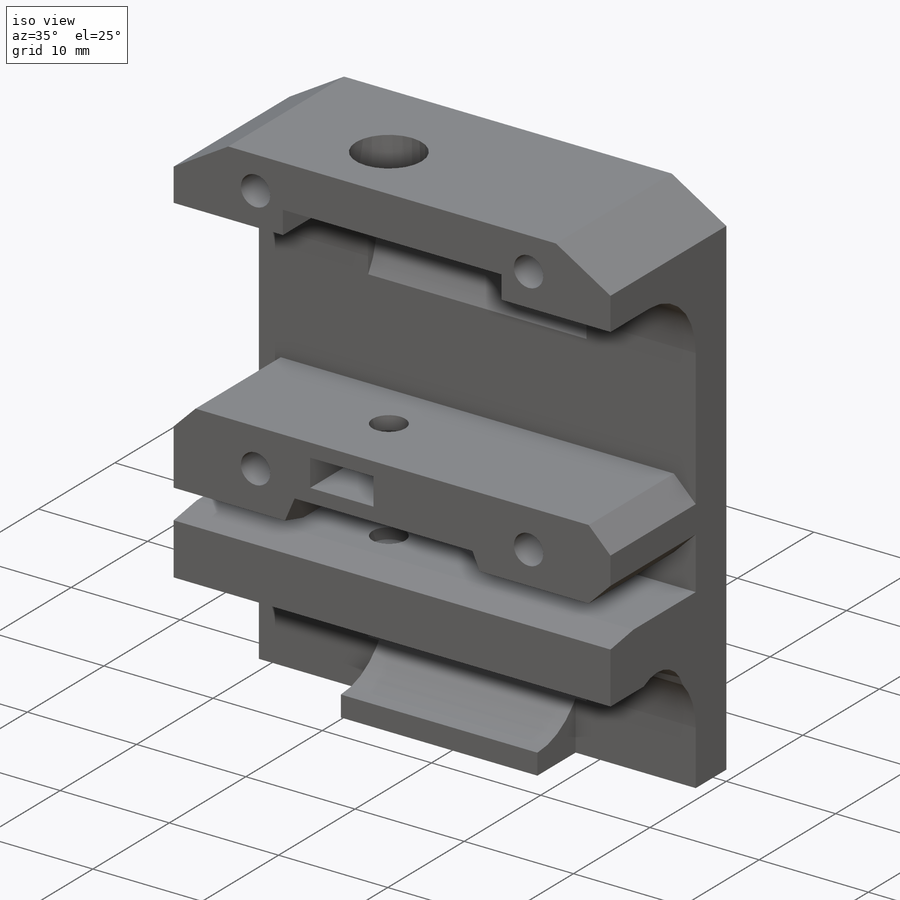
[diagram: iso view]
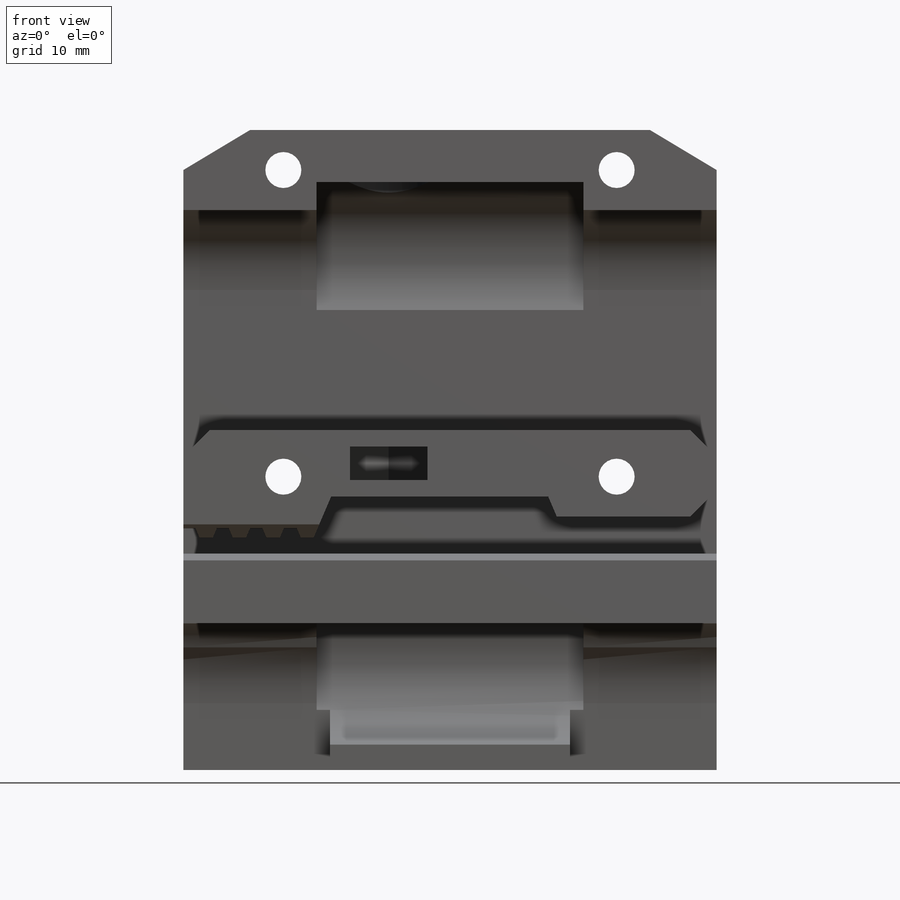
[diagram: front view]
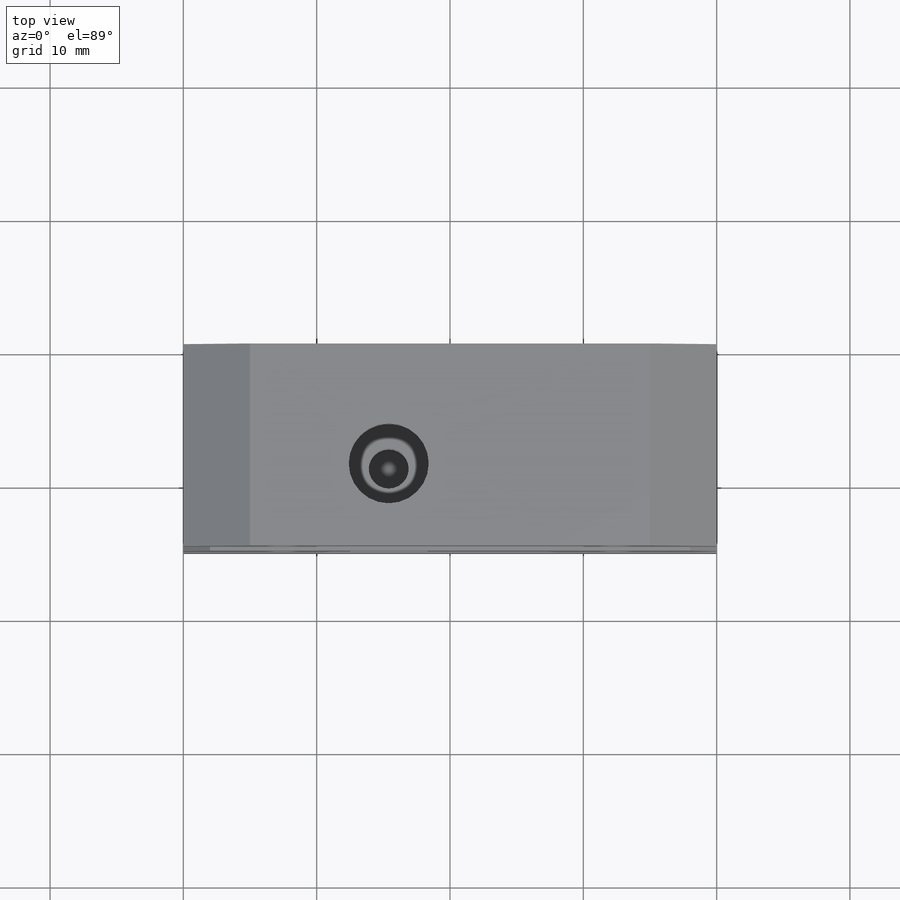
[diagram: top view]
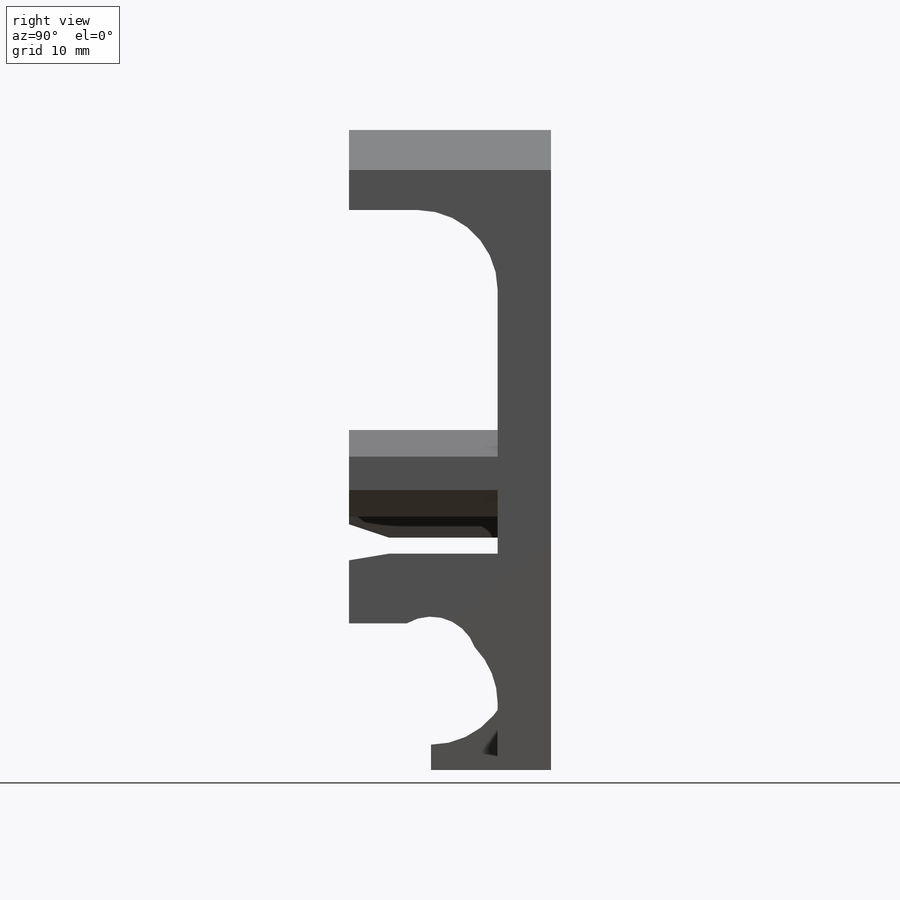
[diagram: right view]
SOLIDWORKS PART (.sldprt)
format: sldprt  version: not decoded by parser v0  size: 575,488 bytes
history: native  units: mm
features: sketch x13, cut_extrude x11, chamfer x6, extrude x2, plane x2, fillet x2, material x1 (+16 scaffold rows collapsed)
feature tree (53):
  scaffold x16  (default folders/planes/origin — collapsed)
  material  "ABS"
  sketch  "Sketch1"  dims[c1.D1=64.0mm c1.D2=40.0mm c1.D3=4.0mm c1.D4=6.0mm c1.D5=17.0mm c2.D1=40.0mm c2.D2=32.0mm c3.D1=40.0mm c3.D2=22.0mm c3.D3=9.0mm c4.D1=48.0mm c4.D2=40.0mm]
  extrude  "Boss-Extrude1"  Depth=4mm
  plane  "Plane2"  Offset=23mm
  sketch  "Sketch2"  dims[c1.D1=12.0mm c1.D2=12.0mm c2.D1=8.2mm c2.D2=10.0mm c2.D3=12.0mm c2.D4=2.0mm c2.D5=12.0mm c3.D3=2.0mm c3.D4=4.1mm c3.D5=2.0mm c3.D6=2.0mm c4.D5=30.0mm c4.D6=2.0mm c4.D3=20.0mm]
  cut_extrude  "Cut-Extrude1"  Depth=1mm
  sketch  "Sketch3"  dims[c1.D1=8.0mm c1.D2=0.9mm c2.D1=0.9mm c2.D3=0.9mm]
  cut_extrude  "Cut-Extrude2"  Depth=4mm
  chamfer  "Chamfer1"  Distance=1mm Angle=45deg
  sketch  "Sketch4"  dims[D1=3.3mm D2=4.1mm D3=4.1mm]
  cut_extrude  "Cut-Extrude3"  [1 undecoded]
  plane  "Plane1"  Offset=20mm
  sketch  "Sketch5"  dims[c1.D1=15.0mm c1.D2=1.8mm c1.D3=4.875mm c1.D4=0.9mm c1.D5=2.4mm c2.D2=0.9mm c2.D3=0.6mm c2.D4=2.0mm c3.D2=0.6mm c3.D5=0.0mm c3.D7=4.875mm c3.D9=1.0mm c3.D10=2.6mm c3.D11=2.5mm c3.D14=5.0mm c3.D15=1.0mm c3.D16=5.9mm c3.D17=10.0mm c3.D18=0.9mm c3.D19=1.8mm c4.D5=4.875mm c4.D7=0.9mm c4.D10=1.2mm c4.D11=2.8mm c4.D18=5.0mm c4.D19=2.5mm c4.D15=5.1mm c4.D16=10.0mm c4.D20=6.0mm c5.D16=12.5mm c5.D17=25.0mm c5.D9=8.8mm c5.D14=6.0mm c6.D9=5.0mm c6.D14=18.0mm c6.D2=1.6mm c6.D3=2.0mm c7.D3=~116.565051deg c8.D3=0.9mm c8.D4=0.3mm c8.D5=0.3mm c8.D7=1.0mm c8.D8=4.875mm c8.D10=7.375mm c8.D2=0.7mm c8.D11=1.9mm c9.D10=4.0mm c9.D15=12.0mm c9.D16=4.0mm c9.D12=19.0mm c9.D13=~48.099553mm c9.D6=19.0mm c10.D12=12.0mm c10.D13=12.0mm c10.D15=5.0mm c10.D5=2.4mm c10.D6=11.0mm c11.D12=11.0mm c11.D13=8.0mm]
  extrude  "Boss-Extrude2"  Depth=11.15mm
  fillet  "Fillet1"  Radius=6mm
  sketch  "Sketch6"  dims[D1=2.7mm D2=23.0mm D3=22.0mm D4=12.5mm]
  cut_extrude  "Cut-Extrude4"  [1 undecoded]
  chamfer  "Chamfer2"  Distance=2mm Angle=45deg
  sketch  "Sketch7"  dims[D1=9.0mm]
  cut_extrude  "Cut-Extrude5"  Depth=3mm
  fillet  "Fillet2"  Radius=3mm
  chamfer  "Chamfer3"  Distance=3mm
  chamfer  "Chamfer4"  Distance=3mm
  sketch  "Sketch8"  dims[c1.D2=12.2mm c1.D1=30.0mm c1.D3=10.0mm c1.D4=5.0mm c1.D5=~4.431233mm c2.D5=45.0deg c2.D4=5.0mm]
  cut_extrude  "Cut-Extrude6"  Depth=10mm
  sketch  "Sketch12"  dims[D3=6.0mm D1=5.0mm D2=15.4mm]
  cut_extrude  "Cut-Extrude8"  [1 undecoded]
  sketch  "Sketch13"  dims[D1=3.0mm]
  cut_extrude  "Cut-Extrude10"  Depth=1mm
  sketch  "Sketch9"  dims[D1=5.8mm D2=5.0mm D3=15.4mm]
  cut_extrude  "Cut-Extrude7"  Depth=1.25mm
  chamfer  "Chamfer5"  Distance=5mm
  chamfer  "Chamfer6"  Distance=3mm
  sketch  "Sketch14"  dims[c1.D1=2.0mm c1.D4=~2.210836mm c1.D5=~2.535777mm c1.D6=~2.535777mm c1.D7=2.0mm c1.D8=2.0mm c1.D11=~1.920504mm c1.D13=2.7mm c1.D14=2.7mm c1.D2=9.5mm c1.D3=9.0mm c2.D4=12.0mm c2.D5=4.0mm c2.D6=4.0mm c2.D7=12.0mm c2.D8=10.0mm c2.D9=~6.867394mm c3.D9=45.0deg c3.D10=18.5mm c3.D11=5.0mm c3.D12=13.0mm c4.D10=9.5mm]
  cut_extrude  "Cut-Extrude11"  Depth=10mm
  sketch  "Sketch15"  dims[c1.D1=7.0mm c1.D3=~12.425706mm c1.D2=30.0mm c2.D3=10.0mm c2.D4=5.0mm]
  cut_extrude  "Cut-Extrude12"  [1 undecoded]
decode coverage: 30 of 34 modeling features carry decoded parameters
note: ~ marks probable driven/reference dimensions
note: 4 parameter values undecoded
summary: no parameter record found for 4 features
note: suppression state not decoded; provenance and decode notes live in map.json
